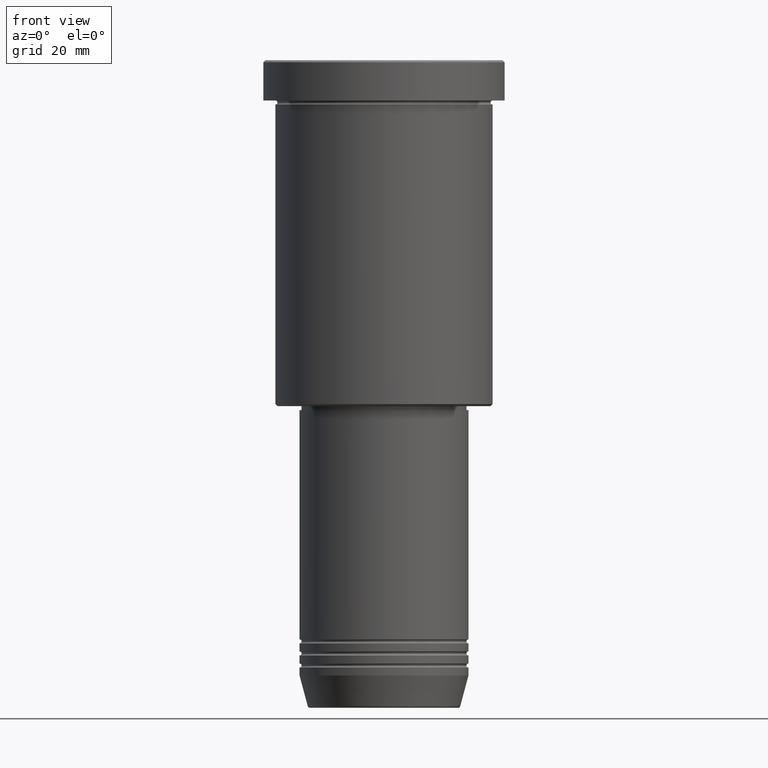
[diagram: clean part render]
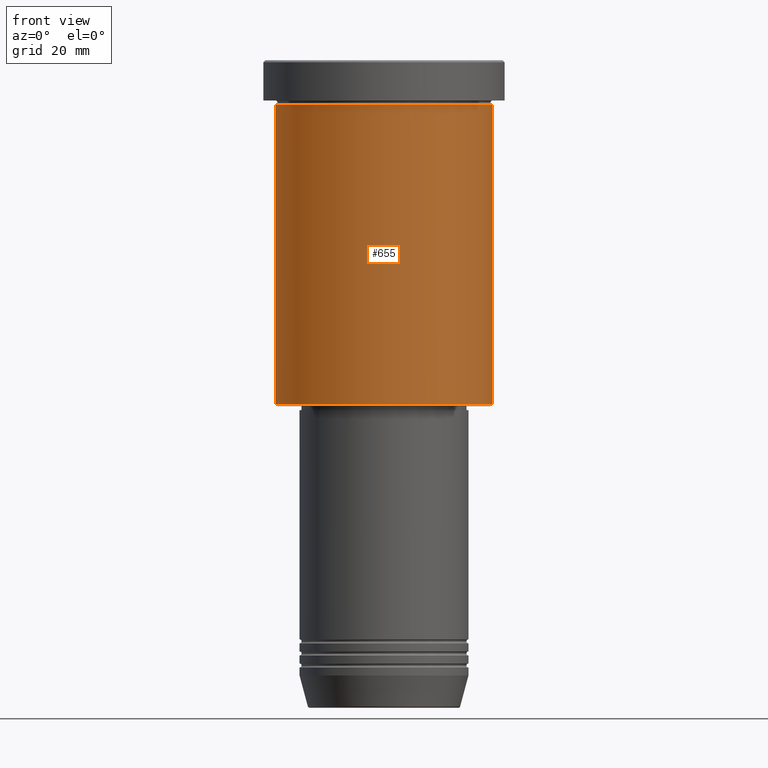
[diagram: same view with one face highlighted and labeled with its STEP entity id]
A machine part, front view. The second image highlights one B-rep face of the part: STEP entity #655.
In plain terms, the highlighted cylindrical surface (partial cylindrical patch) has radius 27 mm, axis along (-0, -0, 1).
Its self-contained STEP definition (entity closure, byte-faithful):
#61 = VECTOR ( 'NONE', #197, 1000.000000000000000 ) ;
#77 = LINE ( 'NONE', #83, #80 ) ;
#80 = VECTOR ( 'NONE', #87, 1000.000000000000000 ) ;
#83 = CARTESIAN_POINT ( 'NONE',  ( 27.00000000000000355, 0.000000000000000000, 0.000000000000000000 ) ) ;
#87 = DIRECTION ( 'NONE',  ( -0.000000000000000000, -0.000000000000000000, 1.000000000000000000 ) ) ;
#122 = CARTESIAN_POINT ( 'NONE',  ( -27.00000000000000355, 3.306546357697854128E-15, -85.49999999999997158 ) ) ;
#134 = EDGE_LOOP ( 'NONE', ( #150, #719, #174, #835 ) ) ;
#150 = ORIENTED_EDGE ( 'NONE', *, *, #1112, .F. ) ;
#174 = ORIENTED_EDGE ( 'NONE', *, *, #516, .T. ) ;
#197 = DIRECTION ( 'NONE',  ( -0.000000000000000000, -0.000000000000000000, 1.000000000000000000 ) ) ;
#200 = EDGE_CURVE ( 'NONE', #323, #1156, #383, .T. ) ;
#217 = CARTESIAN_POINT ( 'NONE',  ( 0.000000000000000000, 0.000000000000000000, -10.99999999999999289 ) ) ;
#273 = CARTESIAN_POINT ( 'NONE',  ( 0.000000000000000000, 0.000000000000000000, -85.49999999999997158 ) ) ;
#323 = VERTEX_POINT ( 'NONE', #435 ) ;
#334 = CARTESIAN_POINT ( 'NONE',  ( 27.00000000000000355, 0.000000000000000000, -85.49999999999997158 ) ) ;
#360 = CIRCLE ( 'NONE', #1022, 27.00000000000000355 ) ;
#375 = CYLINDRICAL_SURFACE ( 'NONE', #749, 27.00000000000000355 ) ;
#383 = CIRCLE ( 'NONE', #707, 27.00000000000000355 ) ;
#388 = CARTESIAN_POINT ( 'NONE',  ( -27.00000000000000355, 3.306546357697854128E-15, 0.000000000000000000 ) ) ;
#435 = CARTESIAN_POINT ( 'NONE',  ( -27.00000000000000355, 3.306546357697854128E-15, -10.99999999999999289 ) ) ;
#474 = LINE ( 'NONE', #388, #61 ) ;
#516 = EDGE_CURVE ( 'NONE', #957, #1156, #77, .T. ) ;
#558 = DIRECTION ( 'NONE',  ( -0.000000000000000000, -0.000000000000000000, 1.000000000000000000 ) ) ;
#569 = CARTESIAN_POINT ( 'NONE',  ( 0.000000000000000000, 0.000000000000000000, 0.000000000000000000 ) ) ;
#623 = VERTEX_POINT ( 'NONE', #122 ) ;
#655 = ADVANCED_FACE ( 'NONE', ( #737 ), #375, .T. ) ;
#658 = DIRECTION ( 'NONE',  ( -0.000000000000000000, -0.000000000000000000, 1.000000000000000000 ) ) ;
#669 = DIRECTION ( 'NONE',  ( 1.000000000000000000, 0.000000000000000000, 0.000000000000000000 ) ) ;
#707 = AXIS2_PLACEMENT_3D ( 'NONE', #217, #658, #669 ) ;
#719 = ORIENTED_EDGE ( 'NONE', *, *, #1029, .T. ) ;
#737 = FACE_OUTER_BOUND ( 'NONE', #134, .T. ) ;
#744 = CARTESIAN_POINT ( 'NONE',  ( 27.00000000000000355, 0.000000000000000000, -10.99999999999999289 ) ) ;
#749 = AXIS2_PLACEMENT_3D ( 'NONE', #569, #558, #753 ) ;
#753 = DIRECTION ( 'NONE',  ( 1.000000000000000000, 0.000000000000000000, 0.000000000000000000 ) ) ;
#819 = DIRECTION ( 'NONE',  ( -0.000000000000000000, -0.000000000000000000, 1.000000000000000000 ) ) ;
#835 = ORIENTED_EDGE ( 'NONE', *, *, #200, .F. ) ;
#957 = VERTEX_POINT ( 'NONE', #334 ) ;
#1022 = AXIS2_PLACEMENT_3D ( 'NONE', #273, #819, #1178 ) ;
#1029 = EDGE_CURVE ( 'NONE', #623, #957, #360, .T. ) ;
#1112 = EDGE_CURVE ( 'NONE', #623, #323, #474, .T. ) ;
#1156 = VERTEX_POINT ( 'NONE', #744 ) ;
#1178 = DIRECTION ( 'NONE',  ( -1.000000000000000000, 0.000000000000000000, 0.000000000000000000 ) ) ;